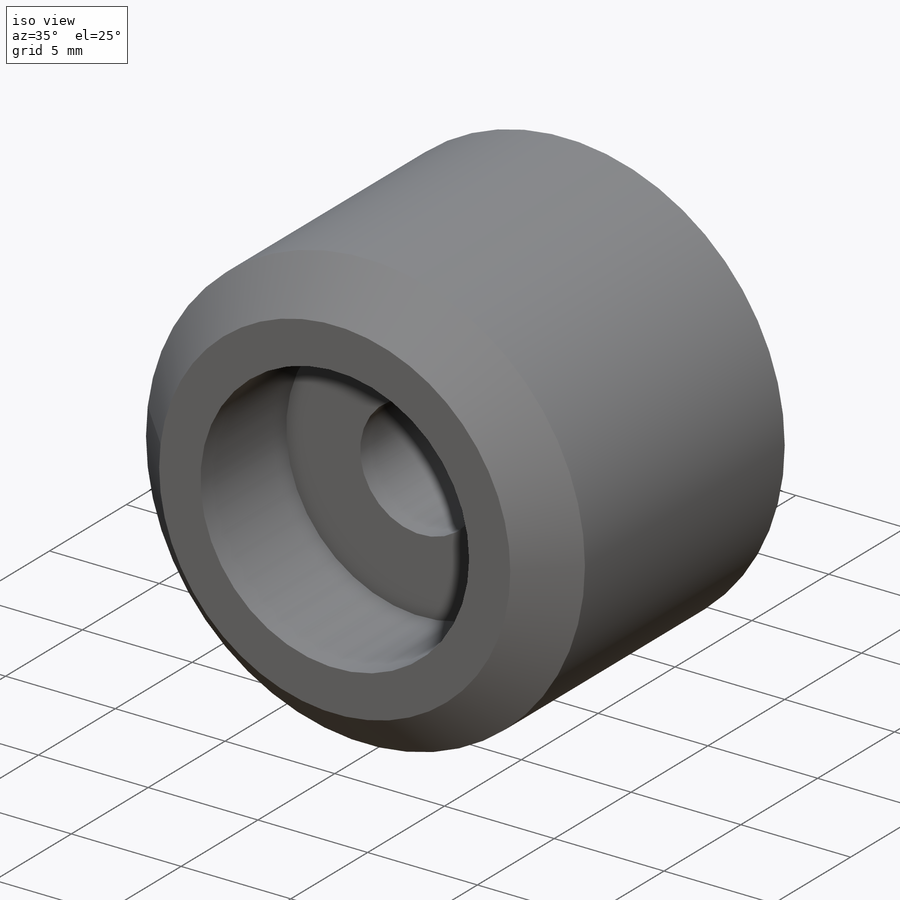
[diagram: iso view]
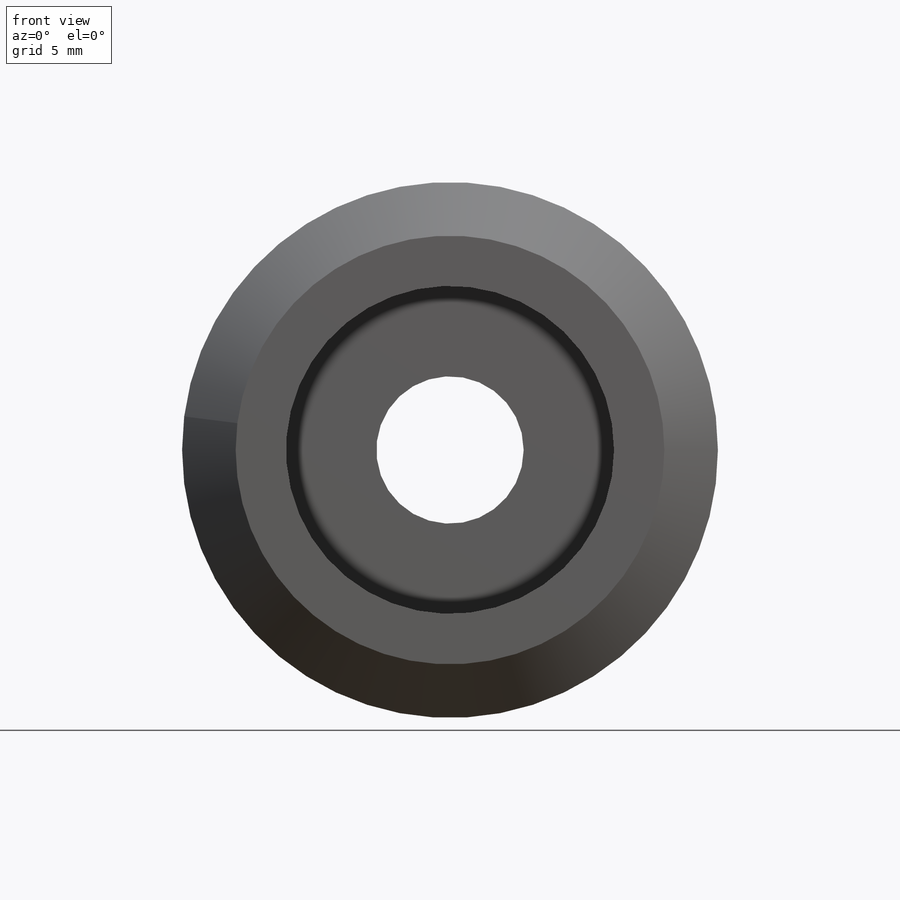
[diagram: front view]
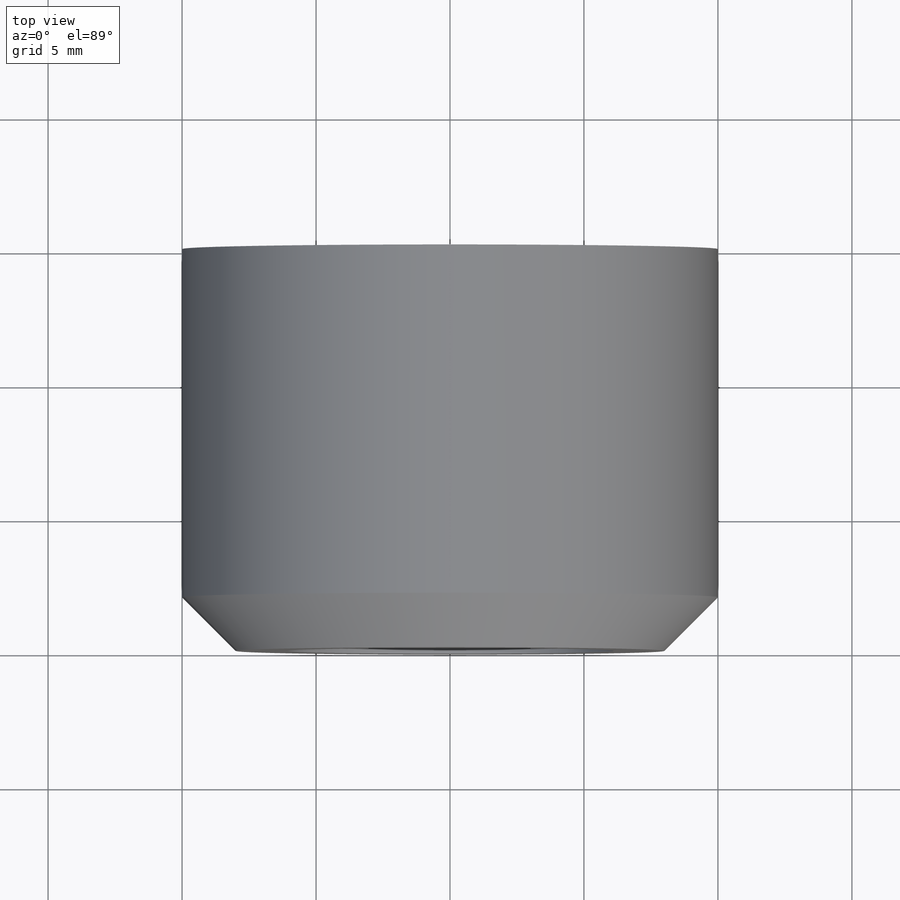
[diagram: top view]
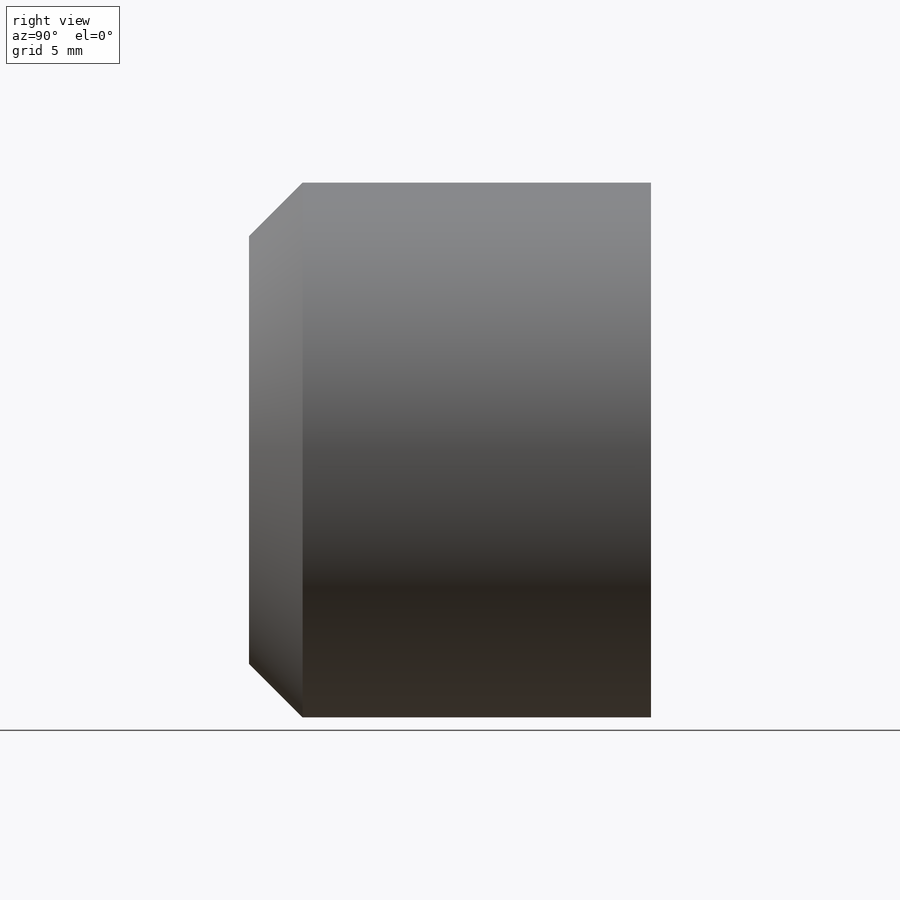
[diagram: right view]
SOLIDWORKS PART (.sldprt)
format: sldprt  version: not decoded by parser v0  size: 169,984 bytes
history: native  units: mm
features: sketch x3, material x1, extrude x1, chamfer x1, plane x1, hole x1 (+16 scaffold rows collapsed)
feature tree (24):
  scaffold x16  (default folders/planes/origin — collapsed)
  material  "Natural rubber"
  sketch  "Sketch1"  dims[D1=20.0mm]
  extrude  "Boss-Extrude1"  Depth=15mm
  chamfer  "Chamfer1"  Distance=2mm Angle=45deg
  plane  "Plane1"  Offset=8mm
  hole  "CBORE for M5 Hex Head Bolt1"  Diameter=5.5mm Depth=15mm
  sketch  "Sketch3"  dims[D1=0.0mm]
  sketch  "Sketch4"  dims[hole-wizard template sketch: 42 standard entries collapsed; hole parameters kept: c12.Thru Hole Depth=15.0mm c12.C'Bore Dia.=12.24mm c12.C'Bore Depth=5.58mm]
decode coverage: 6 of 6 modeling features carry decoded parameters
note: ~ marks probable driven/reference dimensions
note: suppression state not decoded; provenance and decode notes live in map.json
